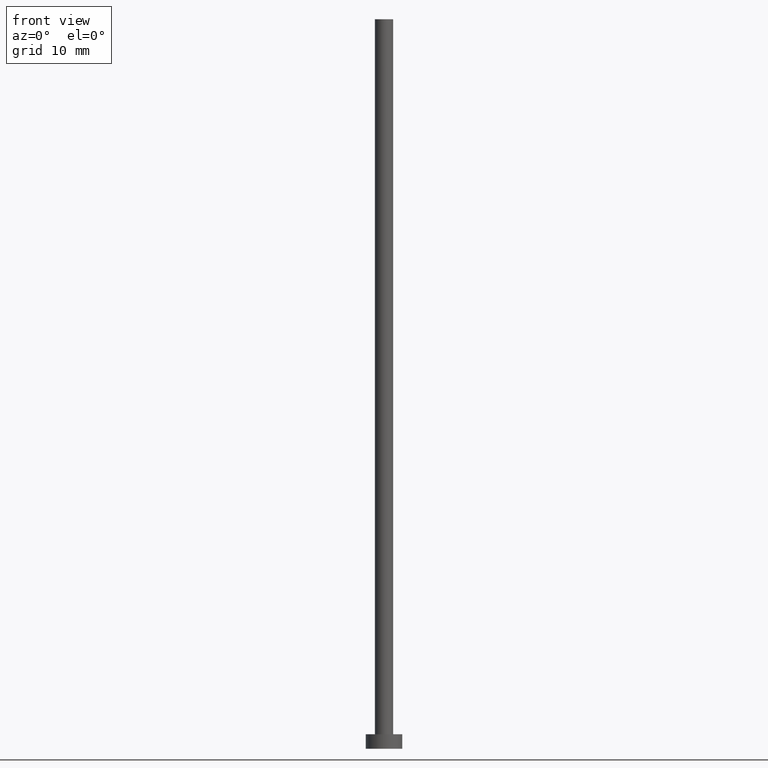
[diagram: clean part render]
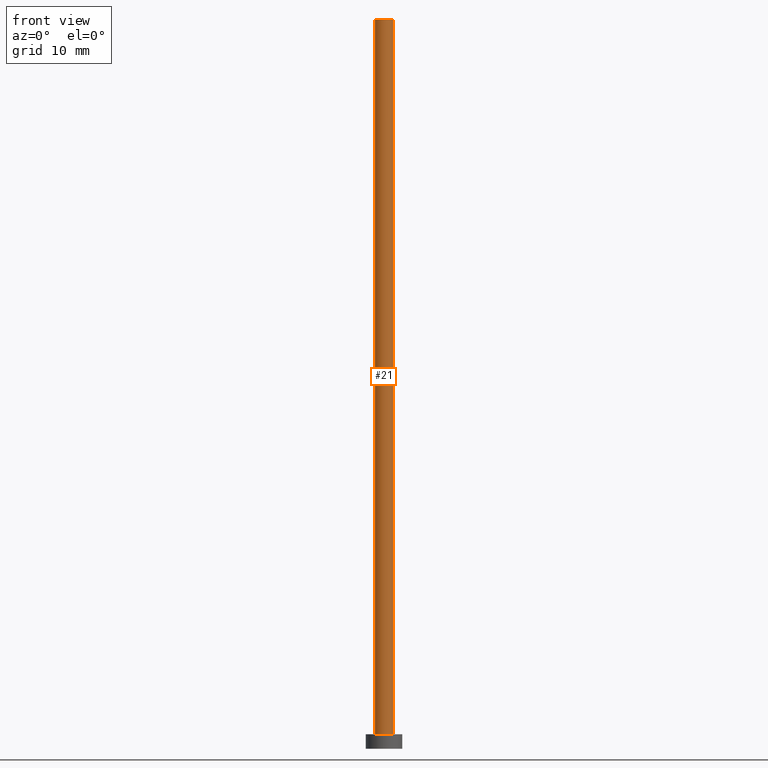
[diagram: same view with one face highlighted and labeled with its STEP entity id]
A machine part, front view. The second image highlights one B-rep face of the part: STEP entity #21.
In plain terms, the highlighted cylindrical surface (edge-blend (fillet) strip) has radius 1.25 mm, axis along (-0, -0, -1).
Its self-contained STEP definition (entity closure, byte-faithful):
#1 = EDGE_CURVE ( 'NONE', #100, #57, #23, .T. ) ;
#2 = CARTESIAN_POINT ( 'NONE',  ( 1.250000000000000000, 1.530808498934191571E-16, 100.0000000000000000 ) ) ;
#12 = VERTEX_POINT ( 'NONE', #129 ) ;
#13 = EDGE_CURVE ( 'NONE', #12, #118, #202, .T. ) ;
#18 = DIRECTION ( 'NONE',  ( 1.000000000000000000, 0.000000000000000000, 0.000000000000000000 ) ) ;
#21 = ADVANCED_FACE ( 'NONE', ( #99 ), #39, .T. ) ;
#23 = CIRCLE ( 'NONE', #136, 1.250000000000000000 ) ;
#28 = VECTOR ( 'NONE', #140, 1000.000000000000000 ) ;
#39 = CYLINDRICAL_SURFACE ( 'NONE', #70, 1.250000000000000000 ) ;
#40 = ORIENTED_EDGE ( 'NONE', *, *, #151, .T. ) ;
#44 = CARTESIAN_POINT ( 'NONE',  ( -1.250000000000000000, 0.000000000000000000, 100.0000000000000000 ) ) ;
#52 = DIRECTION ( 'NONE',  ( 0.000000000000000000, 0.000000000000000000, 1.000000000000000000 ) ) ;
#53 = DIRECTION ( 'NONE',  ( -0.000000000000000000, -0.000000000000000000, -1.000000000000000000 ) ) ;
#54 = DIRECTION ( 'NONE',  ( 0.000000000000000000, 0.000000000000000000, 1.000000000000000000 ) ) ;
#55 = CARTESIAN_POINT ( 'NONE',  ( 0.000000000000000000, 0.000000000000000000, 2.000000000000000000 ) ) ;
#57 = VERTEX_POINT ( 'NONE', #168 ) ;
#70 = AXIS2_PLACEMENT_3D ( 'NONE', #154, #53, #153 ) ;
#99 = FACE_OUTER_BOUND ( 'NONE', #114, .T. ) ;
#100 = VERTEX_POINT ( 'NONE', #123 ) ;
#114 = EDGE_LOOP ( 'NONE', ( #149, #209, #40, #211 ) ) ;
#118 = VERTEX_POINT ( 'NONE', #2 ) ;
#123 = CARTESIAN_POINT ( 'NONE',  ( -1.250000000000000000, 0.000000000000000000, 2.000000000000000000 ) ) ;
#129 = CARTESIAN_POINT ( 'NONE',  ( -1.250000000000000000, 0.000000000000000000, 100.0000000000000000 ) ) ;
#136 = AXIS2_PLACEMENT_3D ( 'NONE', #55, #52, #18 ) ;
#140 = DIRECTION ( 'NONE',  ( -0.000000000000000000, -0.000000000000000000, -1.000000000000000000 ) ) ;
#146 = AXIS2_PLACEMENT_3D ( 'NONE', #194, #54, #254 ) ;
#149 = ORIENTED_EDGE ( 'NONE', *, *, #190, .F. ) ;
#151 = EDGE_CURVE ( 'NONE', #12, #100, #237, .T. ) ;
#153 = DIRECTION ( 'NONE',  ( -1.000000000000000000, 0.000000000000000000, 0.000000000000000000 ) ) ;
#154 = CARTESIAN_POINT ( 'NONE',  ( 0.000000000000000000, 0.000000000000000000, 100.0000000000000000 ) ) ;
#168 = CARTESIAN_POINT ( 'NONE',  ( 1.250000000000000000, 1.530808498934191571E-16, 2.000000000000000000 ) ) ;
#174 = DIRECTION ( 'NONE',  ( -0.000000000000000000, -0.000000000000000000, -1.000000000000000000 ) ) ;
#178 = LINE ( 'NONE', #196, #28 ) ;
#190 = EDGE_CURVE ( 'NONE', #118, #57, #178, .T. ) ;
#194 = CARTESIAN_POINT ( 'NONE',  ( 0.000000000000000000, 0.000000000000000000, 100.0000000000000000 ) ) ;
#196 = CARTESIAN_POINT ( 'NONE',  ( 1.250000000000000000, 1.530808498934191571E-16, 100.0000000000000000 ) ) ;
#202 = CIRCLE ( 'NONE', #146, 1.250000000000000000 ) ;
#209 = ORIENTED_EDGE ( 'NONE', *, *, #13, .F. ) ;
#211 = ORIENTED_EDGE ( 'NONE', *, *, #1, .T. ) ;
#237 = LINE ( 'NONE', #44, #253 ) ;
#253 = VECTOR ( 'NONE', #174, 1000.000000000000000 ) ;
#254 = DIRECTION ( 'NONE',  ( 1.000000000000000000, 0.000000000000000000, 0.000000000000000000 ) ) ;